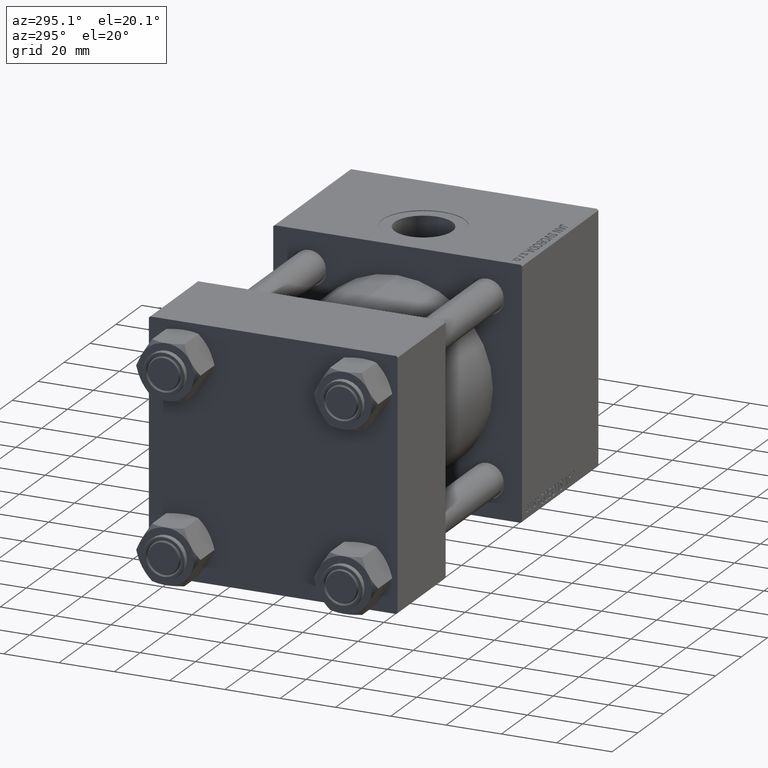
[diagram: clean part render]
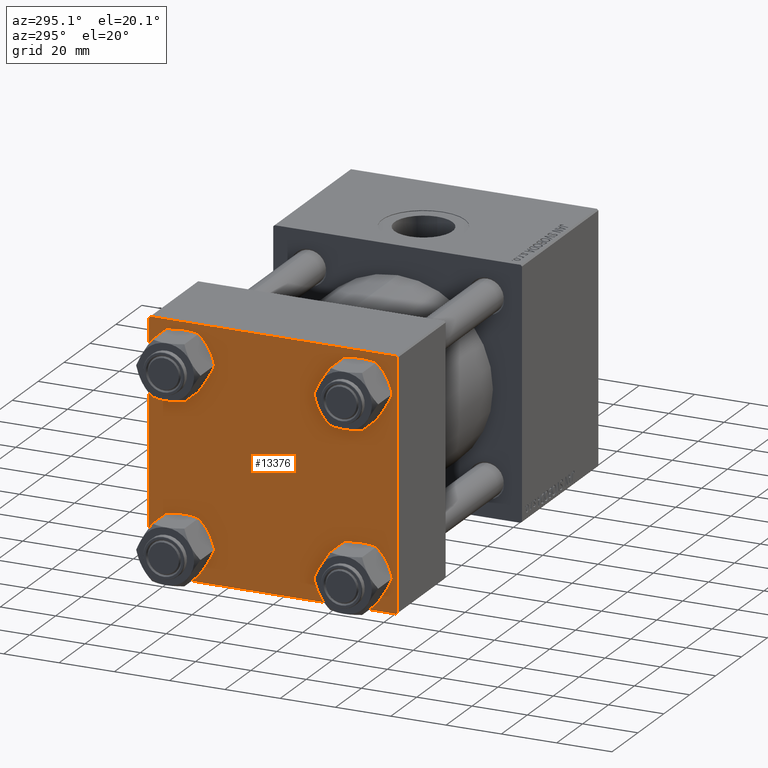
[diagram: same view with one face highlighted and labeled with its STEP entity id]
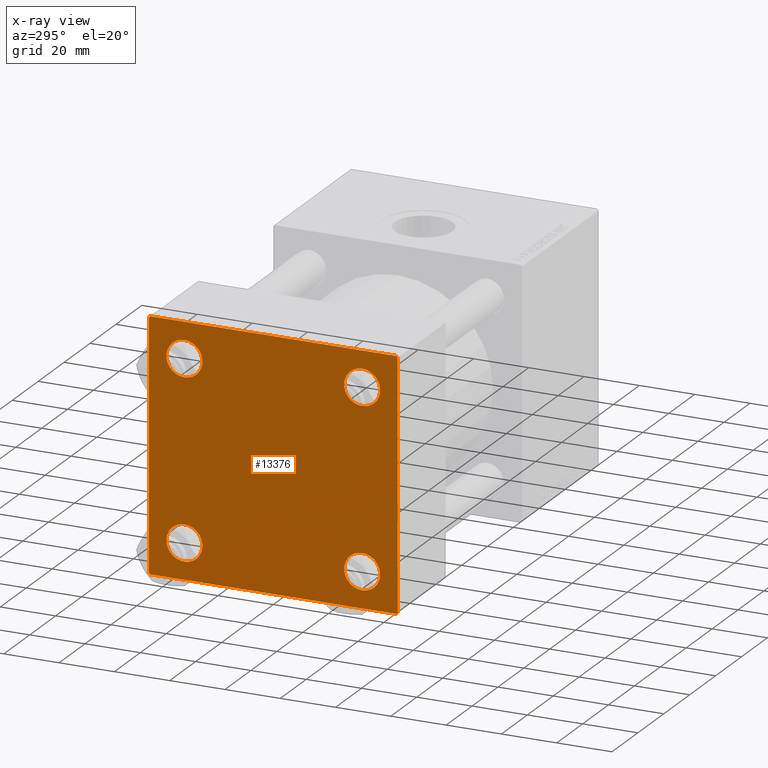
[diagram: x-ray of the same camera — body ghosted, the highlighted face saturated]
A machine part, auxiliary view. The second image highlights one B-rep face of the part: STEP entity #13376.
The next image is the same camera in x-ray: the body ghosted, the highlighted face saturated — about 0% of this face is hidden behind the body in this view.
In plain terms, the highlighted planar face has unit normal (-1, 0, 0).
Its self-contained STEP definition (entity closure, byte-faithful):
#75 = FACE_BOUND ( 'NONE', #15364, .T. ) ;
#485 = ORIENTED_EDGE ( 'NONE', *, *, #15313, .T. ) ;
#568 = CARTESIAN_POINT ( 'NONE',  ( 0.000000000000000000, -44.49999999999994316, -45.00000000000000000 ) ) ;
#785 = ORIENTED_EDGE ( 'NONE', *, *, #18819, .T. ) ;
#835 = EDGE_LOOP ( 'NONE', ( #34288, #35289, #485, #785, #42873, #25037, #37439, #5182 ) ) ;
#1254 = DIRECTION ( 'NONE',  ( -1.000000000000000000, 0.000000000000000000, -0.000000000000000000 ) ) ;
#1540 = CARTESIAN_POINT ( 'NONE',  ( 0.000000000000000000, -44.49999999999997158, 44.99999999999998579 ) ) ;
#1908 = ORIENTED_EDGE ( 'NONE', *, *, #39185, .T. ) ;
#2323 = DIRECTION ( 'NONE',  ( 0.000000000000000000, 0.000000000000000000, 1.000000000000000000 ) ) ;
#2424 = VERTEX_POINT ( 'NONE', #35625 ) ;
#2800 = VECTOR ( 'NONE', #44638, 1000.000000000000000 ) ;
#2844 = AXIS2_PLACEMENT_3D ( 'NONE', #24378, #24122, #5361 ) ;
#3521 = ORIENTED_EDGE ( 'NONE', *, *, #21041, .T. ) ;
#3540 = VERTEX_POINT ( 'NONE', #10531 ) ;
#3996 = DIRECTION ( 'NONE',  ( 0.000000000000000000, -1.000000000000000000, -7.709882115452476934E-17 ) ) ;
#4460 = CIRCLE ( 'NONE', #49787, 6.499999999999977796 ) ;
#5123 = DIRECTION ( 'NONE',  ( 0.000000000000000000, 0.000000000000000000, 1.000000000000000000 ) ) ;
#5150 = VERTEX_POINT ( 'NONE', #19127 ) ;
#5182 = ORIENTED_EDGE ( 'NONE', *, *, #40672, .T. ) ;
#5277 = CIRCLE ( 'NONE', #31968, 6.500000000000019540 ) ;
#5305 = FACE_BOUND ( 'NONE', #44100, .T. ) ;
#5338 = CARTESIAN_POINT ( 'NONE',  ( -0.000000000000000000, -44.74999999999999289, 44.74999999999999289 ) ) ;
#5361 = DIRECTION ( 'NONE',  ( 0.000000000000000000, 0.000000000000000000, 1.000000000000000000 ) ) ;
#5444 = VERTEX_POINT ( 'NONE', #35201 ) ;
#6500 = EDGE_LOOP ( 'NONE', ( #23713, #8531 ) ) ;
#6733 = DIRECTION ( 'NONE',  ( 0.000000000000000000, 0.000000000000000000, 1.000000000000000000 ) ) ;
#7647 = DIRECTION ( 'NONE',  ( -0.000000000000000000, -0.7071067811865474617, -0.7071067811865474617 ) ) ;
#8042 = DIRECTION ( 'NONE',  ( 1.000000000000000000, -0.000000000000000000, 0.000000000000000000 ) ) ;
#8119 = LINE ( 'NONE', #28114, #14622 ) ;
#8531 = ORIENTED_EDGE ( 'NONE', *, *, #20076, .T. ) ;
#8843 = EDGE_CURVE ( 'NONE', #21603, #46299, #32845, .T. ) ;
#8876 = CARTESIAN_POINT ( 'NONE',  ( 0.000000000000000000, 44.50000000000000000, -44.99999999999999289 ) ) ;
#9269 = ORIENTED_EDGE ( 'NONE', *, *, #47953, .T. ) ;
#9362 = FACE_BOUND ( 'NONE', #6500, .T. ) ;
#9417 = DIRECTION ( 'NONE',  ( 0.000000000000000000, 0.000000000000000000, 1.000000000000000000 ) ) ;
#10302 = VECTOR ( 'NONE', #41422, 1000.000000000000000 ) ;
#10531 = CARTESIAN_POINT ( 'NONE',  ( 0.000000000000000000, 45.00000000000000000, 44.49999999999999289 ) ) ;
#10535 = DIRECTION ( 'NONE',  ( 1.000000000000000000, -0.000000000000000000, 0.000000000000000000 ) ) ;
#10787 = CIRCLE ( 'NONE', #25381, 6.499999999999977796 ) ;
#12338 = CARTESIAN_POINT ( 'NONE',  ( 0.000000000000000000, -32.14999999999997726, 25.65000000000002700 ) ) ;
#12343 = CARTESIAN_POINT ( 'NONE',  ( 0.000000000000000000, -32.14999999999997726, 32.15000000000000568 ) ) ;
#12423 = CIRCLE ( 'NONE', #44803, 6.500000000000019540 ) ;
#13168 = FACE_OUTER_BOUND ( 'NONE', #835, .T. ) ;
#13376 = ADVANCED_FACE ( 'NONE', ( #9362, #38847, #5305, #75, #13168 ), #32149, .T. ) ;
#13791 = DIRECTION ( 'NONE',  ( 0.000000000000000000, 0.000000000000000000, 1.000000000000000000 ) ) ;
#14326 = CARTESIAN_POINT ( 'NONE',  ( 0.000000000000000000, -45.00000000000000000, 44.99999999999998579 ) ) ;
#14375 = CARTESIAN_POINT ( 'NONE',  ( 0.000000000000000000, -32.14999999999997726, 38.64999999999999147 ) ) ;
#14459 = VECTOR ( 'NONE', #16984, 1000.000000000000000 ) ;
#14622 = VECTOR ( 'NONE', #23571, 999.9999999999998863 ) ;
#15313 = EDGE_CURVE ( 'NONE', #25824, #39411, #23765, .T. ) ;
#15364 = EDGE_LOOP ( 'NONE', ( #3521, #1908 ) ) ;
#15918 = CARTESIAN_POINT ( 'NONE',  ( 0.000000000000000000, 45.00000000000000000, -44.99999999999999289 ) ) ;
#16125 = DIRECTION ( 'NONE',  ( 0.000000000000000000, 0.000000000000000000, 1.000000000000000000 ) ) ;
#16375 = CARTESIAN_POINT ( 'NONE',  ( 0.000000000000000000, 32.14999999999999147, 32.14999999999999858 ) ) ;
#16747 = LINE ( 'NONE', #5338, #32089 ) ;
#16984 = DIRECTION ( 'NONE',  ( 0.000000000000000000, 0.000000000000000000, -1.000000000000000000 ) ) ;
#17166 = VECTOR ( 'NONE', #21702, 1000.000000000000000 ) ;
#17795 = ORIENTED_EDGE ( 'NONE', *, *, #47248, .T. ) ;
#18744 = AXIS2_PLACEMENT_3D ( 'NONE', #24890, #39589, #5123 ) ;
#18819 = EDGE_CURVE ( 'NONE', #39411, #41596, #22066, .T. ) ;
#19001 = VERTEX_POINT ( 'NONE', #27853 ) ;
#19127 = CARTESIAN_POINT ( 'NONE',  ( 0.000000000000000000, -32.14999999999997726, -38.64999999999998437 ) ) ;
#20076 = EDGE_CURVE ( 'NONE', #35907, #26077, #4460, .T. ) ;
#20362 = ORIENTED_EDGE ( 'NONE', *, *, #23334, .T. ) ;
#20772 = DIRECTION ( 'NONE',  ( -0.000000000000000000, 0.000000000000000000, 1.000000000000000000 ) ) ;
#21041 = EDGE_CURVE ( 'NONE', #21046, #19001, #5277, .T. ) ;
#21046 = VERTEX_POINT ( 'NONE', #47298 ) ;
#21179 = CIRCLE ( 'NONE', #18744, 6.500000000000019540 ) ;
#21332 = DIRECTION ( 'NONE',  ( 1.000000000000000000, -0.000000000000000000, 0.000000000000000000 ) ) ;
#21603 = VERTEX_POINT ( 'NONE', #45924 ) ;
#21702 = DIRECTION ( 'NONE',  ( 0.000000000000000000, -1.000000000000000000, -2.312964634635742957E-16 ) ) ;
#22066 = LINE ( 'NONE', #45133, #2800 ) ;
#22117 = VECTOR ( 'NONE', #3996, 1000.000000000000000 ) ;
#22979 = EDGE_CURVE ( 'NONE', #26077, #35907, #31618, .T. ) ;
#23334 = EDGE_CURVE ( 'NONE', #34520, #5150, #49029, .T. ) ;
#23571 = DIRECTION ( 'NONE',  ( 0.000000000000000000, 0.7071067811865574537, -0.7071067811865376918 ) ) ;
#23713 = ORIENTED_EDGE ( 'NONE', *, *, #22979, .T. ) ;
#23765 = LINE ( 'NONE', #15918, #22117 ) ;
#24122 = DIRECTION ( 'NONE',  ( 1.000000000000000000, -0.000000000000000000, 0.000000000000000000 ) ) ;
#24378 = CARTESIAN_POINT ( 'NONE',  ( 0.000000000000000000, -32.14999999999997726, -32.15000000000000568 ) ) ;
#24890 = CARTESIAN_POINT ( 'NONE',  ( 0.000000000000000000, 32.14999999999999147, -32.14999999999999858 ) ) ;
#25037 = ORIENTED_EDGE ( 'NONE', *, *, #27455, .T. ) ;
#25381 = AXIS2_PLACEMENT_3D ( 'NONE', #48830, #10535, #6733 ) ;
#25824 = VERTEX_POINT ( 'NONE', #8876 ) ;
#25881 = CIRCLE ( 'NONE', #42030, 6.500000000000019540 ) ;
#26077 = VERTEX_POINT ( 'NONE', #14375 ) ;
#26875 = VECTOR ( 'NONE', #7647, 1000.000000000000114 ) ;
#27455 = EDGE_CURVE ( 'NONE', #49832, #46299, #16747, .T. ) ;
#27853 = CARTESIAN_POINT ( 'NONE',  ( 0.000000000000000000, 32.14999999999999147, 25.64999999999997726 ) ) ;
#28058 = CARTESIAN_POINT ( 'NONE',  ( 0.000000000000000000, -45.00000000000000000, 44.49999999999998579 ) ) ;
#28114 = CARTESIAN_POINT ( 'NONE',  ( 0.000000000000000000, 44.74999999999936762, 44.75000000000061107 ) ) ;
#28281 = EDGE_CURVE ( 'NONE', #49832, #41596, #41180, .T. ) ;
#28625 = AXIS2_PLACEMENT_3D ( 'NONE', #42638, #1254, #20772 ) ;
#28639 = CARTESIAN_POINT ( 'NONE',  ( 0.000000000000000000, 45.00000000000000000, 45.00000000000000711 ) ) ;
#29557 = CARTESIAN_POINT ( 'NONE',  ( 0.000000000000000000, 45.00000000000000000, 45.00000000000000711 ) ) ;
#31618 = CIRCLE ( 'NONE', #43385, 6.499999999999977796 ) ;
#31716 = EDGE_CURVE ( 'NONE', #3540, #5444, #39545, .T. ) ;
#31801 = CARTESIAN_POINT ( 'NONE',  ( 0.000000000000000000, 32.14999999999999147, -25.64999999999997726 ) ) ;
#31929 = VERTEX_POINT ( 'NONE', #31801 ) ;
#31968 = AXIS2_PLACEMENT_3D ( 'NONE', #16375, #40180, #16125 ) ;
#32089 = VECTOR ( 'NONE', #32435, 1000.000000000000114 ) ;
#32149 = PLANE ( 'NONE',  #28625 ) ;
#32435 = DIRECTION ( 'NONE',  ( -0.000000000000000000, 0.7071067811865474617, 0.7071067811865474617 ) ) ;
#32845 = LINE ( 'NONE', #29557, #17166 ) ;
#32976 = CARTESIAN_POINT ( 'NONE',  ( 0.000000000000000000, -32.14999999999997726, 32.15000000000000568 ) ) ;
#33985 = CARTESIAN_POINT ( 'NONE',  ( 0.000000000000000000, -32.14999999999997726, -25.65000000000002700 ) ) ;
#34288 = ORIENTED_EDGE ( 'NONE', *, *, #31716, .T. ) ;
#34332 = CARTESIAN_POINT ( 'NONE',  ( 0.000000000000000000, -45.00000000000000000, -44.49999999999997158 ) ) ;
#34482 = LINE ( 'NONE', #49973, #26875 ) ;
#34520 = VERTEX_POINT ( 'NONE', #33985 ) ;
#35139 = DIRECTION ( 'NONE',  ( 0.000000000000000000, 0.000000000000000000, 1.000000000000000000 ) ) ;
#35201 = CARTESIAN_POINT ( 'NONE',  ( 0.000000000000000000, 45.00000000000000000, -44.49999999999996447 ) ) ;
#35289 = ORIENTED_EDGE ( 'NONE', *, *, #45284, .T. ) ;
#35625 = CARTESIAN_POINT ( 'NONE',  ( 0.000000000000000000, 32.14999999999999147, -38.65000000000001990 ) ) ;
#35907 = VERTEX_POINT ( 'NONE', #12338 ) ;
#36524 = DIRECTION ( 'NONE',  ( 1.000000000000000000, -0.000000000000000000, 0.000000000000000000 ) ) ;
#37439 = ORIENTED_EDGE ( 'NONE', *, *, #8843, .F. ) ;
#38847 = FACE_BOUND ( 'NONE', #42459, .T. ) ;
#39185 = EDGE_CURVE ( 'NONE', #19001, #21046, #25881, .T. ) ;
#39411 = VERTEX_POINT ( 'NONE', #568 ) ;
#39545 = LINE ( 'NONE', #28639, #14459 ) ;
#39589 = DIRECTION ( 'NONE',  ( 1.000000000000000000, -0.000000000000000000, 0.000000000000000000 ) ) ;
#40180 = DIRECTION ( 'NONE',  ( 1.000000000000000000, -0.000000000000000000, 0.000000000000000000 ) ) ;
#40640 = CARTESIAN_POINT ( 'NONE',  ( 0.000000000000000000, 32.14999999999999147, 32.14999999999999858 ) ) ;
#40672 = EDGE_CURVE ( 'NONE', #21603, #3540, #8119, .T. ) ;
#41180 = LINE ( 'NONE', #14326, #10302 ) ;
#41422 = DIRECTION ( 'NONE',  ( 0.000000000000000000, 0.000000000000000000, -1.000000000000000000 ) ) ;
#41596 = VERTEX_POINT ( 'NONE', #34332 ) ;
#42030 = AXIS2_PLACEMENT_3D ( 'NONE', #40640, #43942, #13791 ) ;
#42459 = EDGE_LOOP ( 'NONE', ( #20362, #9269 ) ) ;
#42638 = CARTESIAN_POINT ( 'NONE',  ( 0.000000000000000000, 0.000000000000000000, 0.000000000000000000 ) ) ;
#42873 = ORIENTED_EDGE ( 'NONE', *, *, #28281, .F. ) ;
#43385 = AXIS2_PLACEMENT_3D ( 'NONE', #12343, #8042, #35139 ) ;
#43454 = EDGE_CURVE ( 'NONE', #31929, #2424, #21179, .T. ) ;
#43942 = DIRECTION ( 'NONE',  ( 1.000000000000000000, -0.000000000000000000, 0.000000000000000000 ) ) ;
#44100 = EDGE_LOOP ( 'NONE', ( #47901, #17795 ) ) ;
#44638 = DIRECTION ( 'NONE',  ( 0.000000000000000000, -0.7071067811865672237, 0.7071067811865279218 ) ) ;
#44803 = AXIS2_PLACEMENT_3D ( 'NONE', #48201, #21332, #9417 ) ;
#45133 = CARTESIAN_POINT ( 'NONE',  ( 0.000000000000000000, -44.74999999999873523, -44.75000000000122924 ) ) ;
#45284 = EDGE_CURVE ( 'NONE', #5444, #25824, #34482, .T. ) ;
#45924 = CARTESIAN_POINT ( 'NONE',  ( 0.000000000000000000, 44.49999999999997158, 45.00000000000000711 ) ) ;
#46299 = VERTEX_POINT ( 'NONE', #1540 ) ;
#47248 = EDGE_CURVE ( 'NONE', #2424, #31929, #12423, .T. ) ;
#47298 = CARTESIAN_POINT ( 'NONE',  ( 0.000000000000000000, 32.14999999999999147, 38.65000000000001990 ) ) ;
#47901 = ORIENTED_EDGE ( 'NONE', *, *, #43454, .T. ) ;
#47953 = EDGE_CURVE ( 'NONE', #5150, #34520, #10787, .T. ) ;
#48201 = CARTESIAN_POINT ( 'NONE',  ( 0.000000000000000000, 32.14999999999999147, -32.14999999999999858 ) ) ;
#48830 = CARTESIAN_POINT ( 'NONE',  ( 0.000000000000000000, -32.14999999999997726, -32.15000000000000568 ) ) ;
#49029 = CIRCLE ( 'NONE', #2844, 6.499999999999977796 ) ;
#49787 = AXIS2_PLACEMENT_3D ( 'NONE', #32976, #36524, #2323 ) ;
#49832 = VERTEX_POINT ( 'NONE', #28058 ) ;
#49973 = CARTESIAN_POINT ( 'NONE',  ( 0.000000000000000000, 44.74999999999999289, -44.74999999999999289 ) ) ;